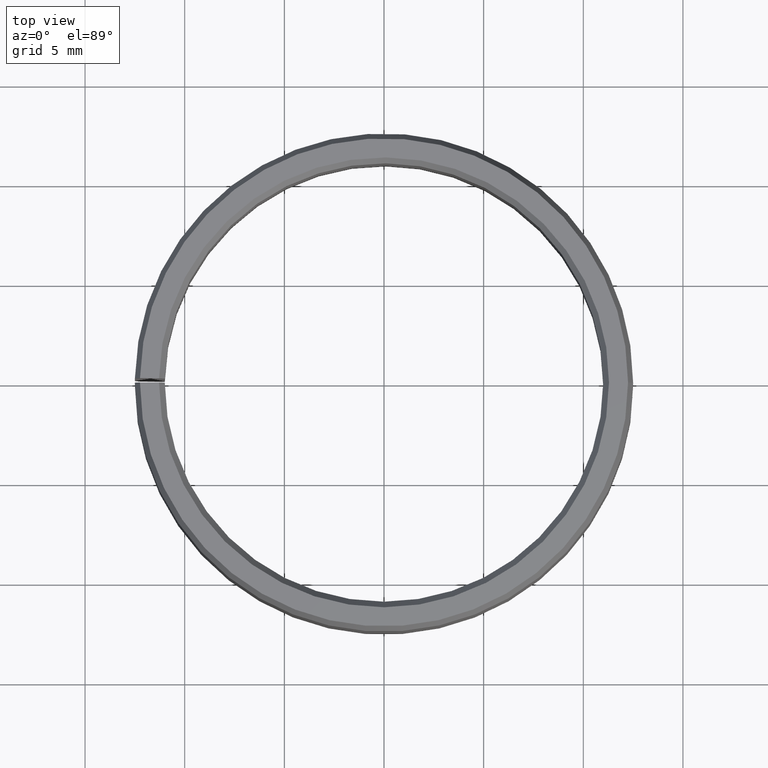
[diagram: clean part render]
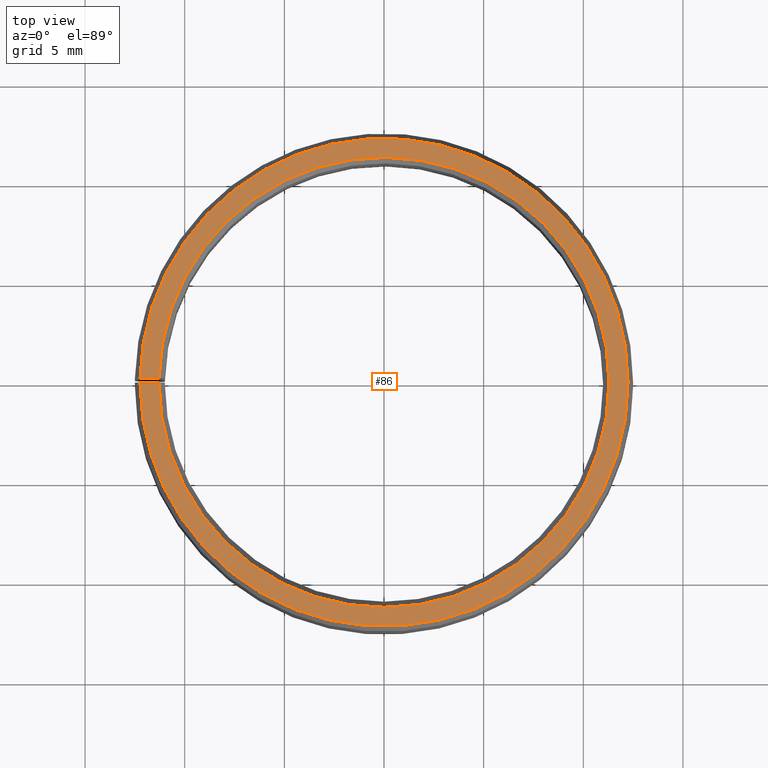
[diagram: same view with one face highlighted and labeled with its STEP entity id]
A machine part, top view. The second image highlights one B-rep face of the part: STEP entity #86.
In plain terms, the highlighted planar face has unit normal (0, -0, 1).
Its self-contained STEP definition (entity closure, byte-faithful):
#86=ADVANCED_FACE('',(#114),#115,.T.);
#114=FACE_OUTER_BOUND('',#146,.T.);
#115=PLANE('',#147);
#146=EDGE_LOOP('',(#235,#236,#237,#238,#239,#240));
#147=AXIS2_PLACEMENT_3D('',#241,#242,#243);
#235=ORIENTED_EDGE('',*,*,#312,.T.);
#236=ORIENTED_EDGE('',*,*,#285,.F.);
#237=ORIENTED_EDGE('',*,*,#313,.F.);
#238=ORIENTED_EDGE('',*,*,#314,.F.);
#239=ORIENTED_EDGE('',*,*,#288,.T.);
#240=ORIENTED_EDGE('',*,*,#311,.T.);
#241=CARTESIAN_POINT('',(-11.7669479853042,1.68125656460658E-014,10.0));
#242=DIRECTION('',(5.48707263966375E-016,-6.09939603923743E-016,1.0));
#243=DIRECTION('',(-1.0,1.89882151931499E-015,5.48707263966376E-016));
#285=EDGE_CURVE('',#326,#328,#329,.T.);
#288=EDGE_CURVE('',#334,#331,#335,.T.);
#311=EDGE_CURVE('',#331,#369,#371,.T.);
#312=EDGE_CURVE('',#369,#328,#372,.T.);
#313=EDGE_CURVE('',#373,#326,#374,.T.);
#314=EDGE_CURVE('',#334,#373,#375,.T.);
#326=VERTEX_POINT('',#390);
#328=VERTEX_POINT('',#393);
#329=CIRCLE('',#394,11.2886751345948);
#331=VERTEX_POINT('',#397);
#334=VERTEX_POINT('',#401);
#335=CIRCLE('',#402,12.2452208360137);
#369=VERTEX_POINT('',#448);
#371=CIRCLE('',#451,12.2452208360137);
#372=LINE('',#452,#453);
#373=VERTEX_POINT('',#454);
#374=CIRCLE('',#455,11.2886751345948);
#375=LINE('',#456,#457);
#390=CARTESIAN_POINT('',(11.2886751345948,-2.90789655025372E-014,10.0));
#393=CARTESIAN_POINT('',(-11.2869558146939,0.197014546587422,10.0));
#394=AXIS2_PLACEMENT_3D('',#473,#474,#475);
#397=CARTESIAN_POINT('',(12.2452208360137,-3.10185413617433E-014,10.0));
#401=CARTESIAN_POINT('',(-12.2452208360137,1.74790388489456E-014,10.0));
#402=AXIS2_PLACEMENT_3D('',#478,#479,#480);
#448=CARTESIAN_POINT('',(-12.2433558295693,0.213708570944422,10.0));
#451=AXIS2_PLACEMENT_3D('',#521,#522,#523);
#452=CARTESIAN_POINT('',(-12.2433558295693,0.213708570944422,10.0));
#453=VECTOR('',#524,9.99999999999999);
#454=CARTESIAN_POINT('',(-11.2886751345948,1.61460924431859E-014,10.0));
#455=AXIS2_PLACEMENT_3D('',#525,#526,#527);
#456=CARTESIAN_POINT('',(-12.2452208360137,1.74790388489456E-014,10.0));
#457=VECTOR('',#528,10.0);
#473=CARTESIAN_POINT('',(5.84037656797638E-015,-6.24601416040361E-015,10.0));
#474=DIRECTION('',(5.48707263966375E-016,-6.09939603923743E-016,1.0));
#475=DIRECTION('',(-1.0,1.89882151931499E-015,5.48707263966376E-016));
#478=CARTESIAN_POINT('',(5.84037656797638E-015,-6.24601416040361E-015,10.0));
#479=DIRECTION('',(5.48707263966375E-016,-6.09939603923743E-016,1.0));
#480=DIRECTION('',(-1.0,1.89882151931499E-015,5.48707263966376E-016));
#521=CARTESIAN_POINT('',(5.84037656797638E-015,-6.24601416040361E-015,10.0));
#522=DIRECTION('',(5.48707263966375E-016,-6.09939603923743E-016,1.0));
#523=DIRECTION('',(-1.0,1.89882151931499E-015,5.48707263966376E-016));
#524=DIRECTION('',(0.999847695156391,-0.0174524064372856,-5.59268607062224E-016));
#525=CARTESIAN_POINT('',(5.84037656797638E-015,-6.24601416040361E-015,10.0));
#526=DIRECTION('',(5.48707263966375E-016,-6.09939603923743E-016,1.0));
#527=DIRECTION('',(-1.0,1.89882151931499E-015,5.48707263966376E-016));
#528=DIRECTION('',(1.0,-1.89882151931499E-015,-5.48707263966376E-016));